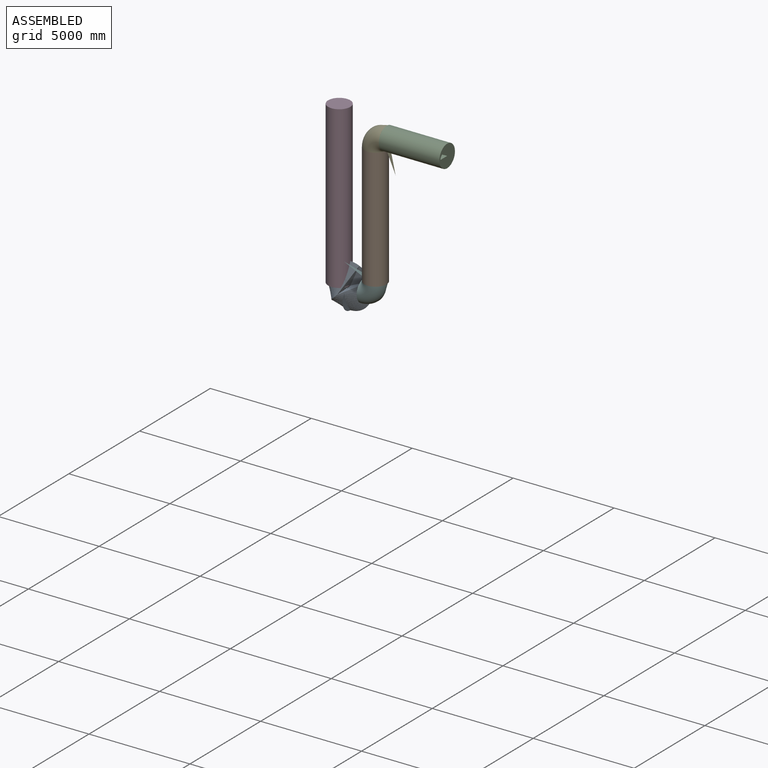
[diagram: assembled view]
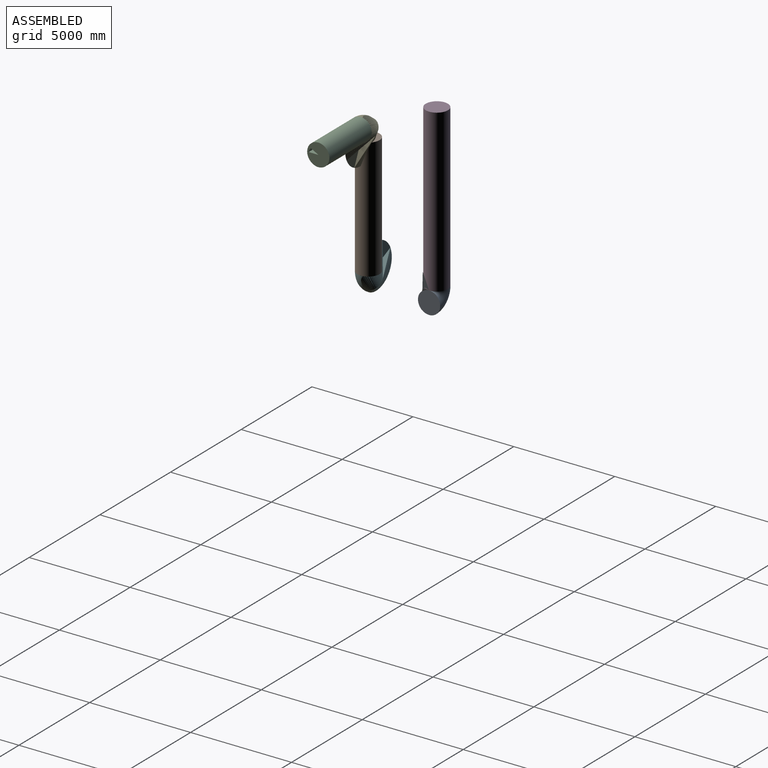
[diagram: assembled view, second angle]
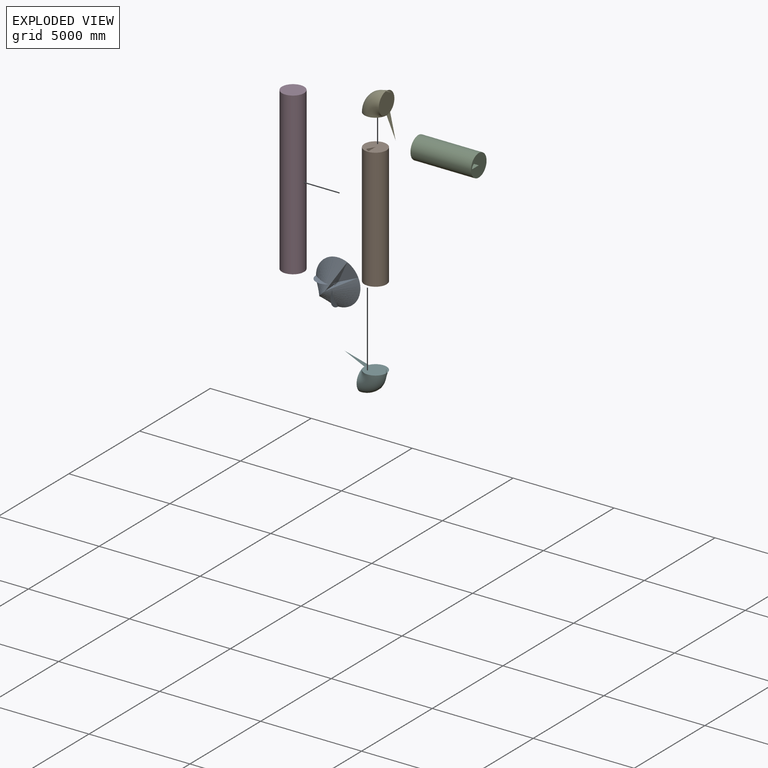
[diagram: exploded view]
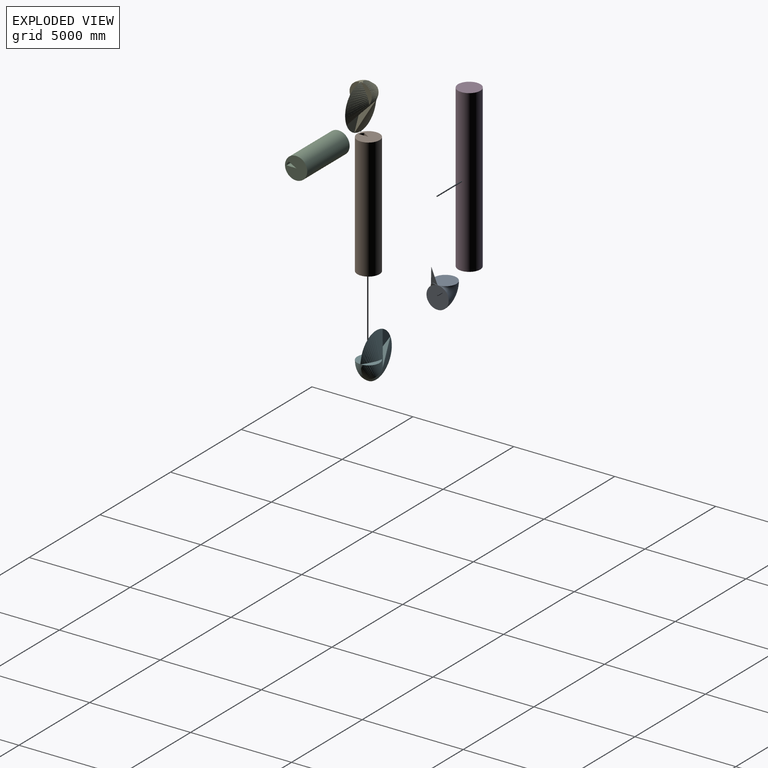
[diagram: exploded view, second angle]
ASSEMBLY  parts=6 mates=4
PART A: 3 faces, bbox 1100x2381.3x2381.3 mm
  f0: torus R=550mm, axis (-1,0,0), area 2985555.3mm2, adj f1,f2
  f1: plane 1100x1100mm, normal (0,0,-1), area 950331.8mm2, adj f0
  f2: plane 1100x1100mm, normal (0,1,0), area 950331.8mm2, adj f0
PART B: 6 faces, bbox 1100x6000x1100 mm
  f0: cylinder r=250mm len=6000mm, axis (0,1,0), area 1491610.8mm2, adj f1,f2,f4,f5
  f1: plane 6000x476.31mm, normal (-1,0,0), area 2857883.8mm2, adj f0,f2,f4,f5
  f2: plane 6000x346.41mm, normal (0.87,0,0.5), area 2400000mm2, adj f0,f1,f4,f5
  f3: cylinder r=550mm len=6000mm, axis (0,1,0), area 20734511.5mm2, adj f4,f5
  f4: plane 1100x1100mm, normal (0,-1,0), area 897826.3mm2, adj f0,f1,f2,f3
  f5: plane 1100x1100mm, normal (0,1,0), area 897826.3mm2, adj f0,f1,f2,f3
PART C: 6 faces, bbox 1100x3000x1100 mm
  f0: cylinder r=250mm len=3000mm, axis (0,-1,0), area 745805.4mm2, adj f1,f2,f4,f5
  f1: plane 3000x346.41mm, normal (0.87,0,0.5), area 1200000mm2, adj f0,f2,f4,f5
  f2: plane 3000x476.31mm, normal (-1,0,0), area 1428941.9mm2, adj f0,f1,f4,f5
  f3: cylinder r=550mm len=3000mm, axis (0,-1,0), area 10367255.8mm2, adj f4,f5
  f4: plane 1100x1100mm, normal (0,1,0), area 897826.3mm2, adj f0,f1,f2,f3
  f5: plane 1100x1100mm, normal (0,-1,0), area 897826.3mm2, adj f0,f1,f2,f3
PART D: 3 faces, bbox 1100x8000x1100 mm
  f0: cylinder r=550mm len=8000mm, axis (0,-1,0), area 27646015.4mm2, adj f1,f2
  f1: plane 1100x1100mm, normal (0,1,0), area 950331.8mm2, adj f0
  f2: plane 1100x1100mm, normal (0,-1,0), area 950331.8mm2, adj f0
PART E: same geometry as A
PART F: same geometry as A
PLACE A rot(axis=(0.58,-0.58,-0.58),120deg) t=(171.67,316.8,326.53)mm
PLACE B rot(axis=(1,0,0),90deg) t=(2968.02,-1112.37,7675.16)mm
PLACE C rot(axis=(0.58,0.58,-0.58),120deg) t=(3518.02,-1112.37,8225.16)mm
PLACE D rot(axis=(1,0,0),90deg) t=(171.67,316.8,326.53)mm
PLACE E rot(axis=(-0.58,-0.58,0.58),120deg) t=(2968.02,-1112.37,7675.16)mm
PLACE F rot(axis=(0.58,0.58,0.58),120deg) t=(2968.02,-1112.37,1675.16)mm
MATE fastened F.f2 <-> B.f3  axis (0,0,1) through (2968.02,-1112.37,1675.16)mm
MATE fastened C.f3 <-> E.f1  axis (-1,0,0) through (3518.02,-1112.37,8225.16)mm
MATE fastened E.f2 <-> B.f3  axis (0,0,-1) through (2968.02,-1112.37,7675.16)mm
MATE fastened A.f2 <-> D.f0  axis (0,0,1) through (171.67,316.8,326.53)mm
